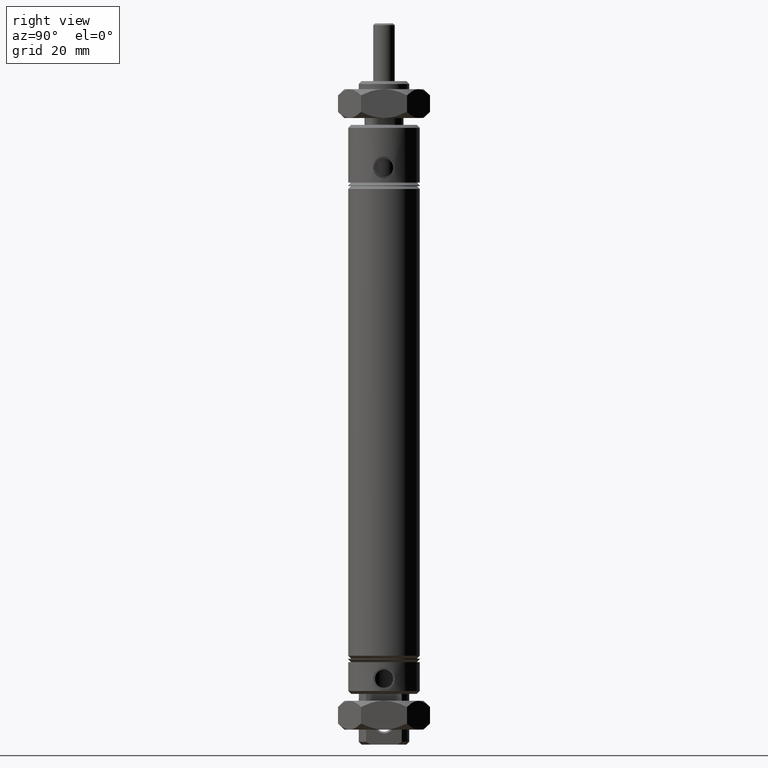
[diagram: clean part render]
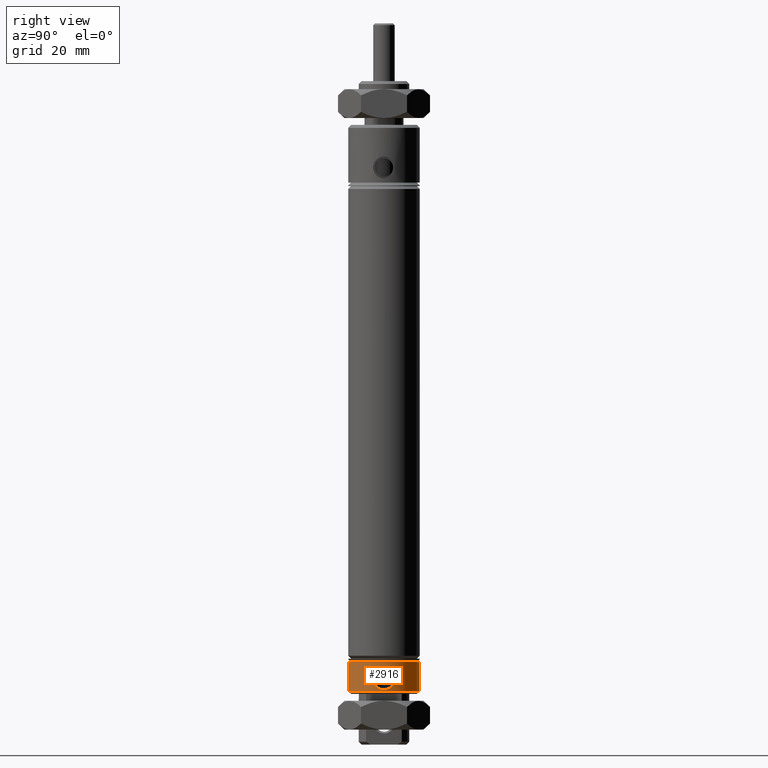
[diagram: same view with one face highlighted and labeled with its STEP entity id]
A machine part, right view. The second image highlights one B-rep face of the part: STEP entity #2916.
In plain terms, the highlighted cylindrical surface (edge-blend (fillet) strip) has radius 7.874 mm, axis along (0, 0, -1).
Its self-contained STEP definition (entity closure, byte-faithful):
#9 = CARTESIAN_POINT ( 'NONE',  ( 0.3071600273579448400, 0.04226327439893309800, -5.265308500240187200 ) ) ;
#19 = CARTESIAN_POINT ( 'NONE',  ( 0.2966211900249151000, 0.09012288623145736600, -5.149308322745176800 ) ) ;
#21 = CARTESIAN_POINT ( 'NONE',  ( 3.796405077356791500E-017, -0.3099999999999998300, -5.750000000000000900 ) ) ;
#33 = CARTESIAN_POINT ( 'NONE',  ( 0.3099999999999997800, 3.061439339677058500E-017, -5.085000000000000900 ) ) ;
#76 = EDGE_CURVE ( 'NONE', #3281, #1106, #1366, .T. ) ;
#79 = ORIENTED_EDGE ( 'NONE', *, *, #186, .F. ) ;
#121 = DIRECTION ( 'NONE',  ( 0.0000000000000000000, 1.000000000000000000, 0.0000000000000000000 ) ) ;
#186 = EDGE_CURVE ( 'NONE', #1241, #1634, #1073, .T. ) ;
#217 = CARTESIAN_POINT ( 'NONE',  ( 0.2952903614985457600, -0.09436757912648391400, -5.167417281589216300 ) ) ;
#233 = CARTESIAN_POINT ( 'NONE',  ( 0.3090713958136183700, -0.02474510461253738200, -5.271931962955304300 ) ) ;
#301 = CARTESIAN_POINT ( 'NONE',  ( 0.3045696741591820100, 0.05800539453309436900, -5.255490275191117900 ) ) ;
#318 = CARTESIAN_POINT ( 'NONE',  ( 0.2988781768133444400, 0.08236764183591938100, -5.132265215025756600 ) ) ;
#321 = ORIENTED_EDGE ( 'NONE', *, *, #1101, .F. ) ;
#337 = CARTESIAN_POINT ( 'NONE',  ( 0.0000000000000000000, 0.3099999999999996100, -5.285000000000000100 ) ) ;
#520 = CARTESIAN_POINT ( 'NONE',  ( 0.3092043599021611600, -0.02501415459339392500, -5.087516644343597100 ) ) ;
#539 = CARTESIAN_POINT ( 'NONE',  ( 0.2950846499500588400, -0.09500025980978002400, -5.186257139786151000 ) ) ;
#542 = EDGE_CURVE ( 'NONE', #1634, #1106, #3953, .T. ) ;
#547 = CARTESIAN_POINT ( 'NONE',  ( 0.3099999999999998300, -0.006316160591006102900, -5.275000000000001200 ) ) ;
#618 = CARTESIAN_POINT ( 'NONE',  ( 0.3098071931940732400, 0.01252278444046925000, -5.274376097982427700 ) ) ;
#639 = CARTESIAN_POINT ( 'NONE',  ( 0.3006957296384625800, 0.07590498057885899900, -5.238438493035586100 ) ) ;
#640 = CARTESIAN_POINT ( 'NONE',  ( 0.0000000000000000000, 0.3099999999999997800, -5.035000000000000100 ) ) ;
#647 = CARTESIAN_POINT ( 'NONE',  ( 0.3016667264376260400, 0.07153562143834839300, -5.117182368188346200 ) ) ;
#700 = B_SPLINE_CURVE_WITH_KNOTS ( 'NONE', 3,
 ( #1852, #3421, #618, #3744, #1863, #9, #2180, #301, #2495, #639, #2807, #947, #3121, #1255, #3430, #1570, #3760, #1877, #19, #2197, #318, #2506, #647, #2826, #960, #3135, #1270, #3451, #1579, #3770, #1896, #33 ),
 .UNSPECIFIED., .F., .F.,
 ( 4, 2, 2, 2, 2, 2, 2, 2, 2, 2, 2, 2, 2, 2, 2, 4 ),
 ( 4.716850976375545600E-019, 0.0004743798116385637400, 0.0009487596232771269300, 0.001423139434915689700, 0.001897519246554253000, 0.002846278869831379100, 0.003320658681469941900, 0.003795038493108504700, 0.004269418304747068400, 0.004743798116385631600, 0.005218177928024194900, 0.005692557739662758100, 0.006166937551301321400, 0.006641317362939884600, 0.007115697174578447900, 0.007590076986217011100 ),
 .UNSPECIFIED. ) ;
#736 = ORIENTED_EDGE ( 'NONE', *, *, #3214, .F. ) ;
#784 = ORIENTED_EDGE ( 'NONE', *, *, #1662, .T. ) ;
#805 = DIRECTION ( 'NONE',  ( -0.0000000000000000000, 3.444432108210942400E-017, 1.000000000000000000 ) ) ;
#833 = CARTESIAN_POINT ( 'NONE',  ( 0.3099999999999997800, 3.061439339677058500E-017, -5.085000000000000900 ) ) ;
#842 = CARTESIAN_POINT ( 'NONE',  ( 0.3063439665956264600, -0.04775511786948459500, -5.097642923438075800 ) ) ;
#855 = CARTESIAN_POINT ( 'NONE',  ( 0.2960532675835911800, -0.09194618415749232500, -5.204695873780811300 ) ) ;
#905 = CARTESIAN_POINT ( 'NONE',  ( 3.796405077356791500E-017, -0.3099999999999998900, -5.285000000000000100 ) ) ;
#947 = CARTESIAN_POINT ( 'NONE',  ( 0.2966318368570733400, 0.09008707917706428000, -5.210782010809048800 ) ) ;
#948 = AXIS2_PLACEMENT_3D ( 'NONE', #2667, #805, #2980 ) ;
#954 = EDGE_LOOP ( 'NONE', ( #321, #736 ) ) ;
#960 = CARTESIAN_POINT ( 'NONE',  ( 0.3045680662011595000, 0.05801231943077293100, -5.104516591644890700 ) ) ;
#1049 = CARTESIAN_POINT ( 'NONE',  ( 0.0000000000000000000, 0.3099999999999997200, -5.750000000000000900 ) ) ;
#1073 = CIRCLE ( 'NONE', #948, 0.3100000000000000000 ) ;
#1101 = EDGE_CURVE ( 'NONE', #3661, #3803, #700, .T. ) ;
#1106 = VERTEX_POINT ( 'NONE', #337 ) ;
#1149 = CARTESIAN_POINT ( 'NONE',  ( 0.3036081947033787400, -0.06278715487034046400, -5.108437437812131800 ) ) ;
#1166 = CARTESIAN_POINT ( 'NONE',  ( 0.2987338012222827100, -0.08296215412800919700, -5.227914825323405300 ) ) ;
#1241 = VERTEX_POINT ( 'NONE', #1338 ) ;
#1255 = CARTESIAN_POINT ( 'NONE',  ( 0.2952846441780617700, 0.09438555970158683800, -5.192473213312689000 ) ) ;
#1270 = CARTESIAN_POINT ( 'NONE',  ( 0.3071707467874796300, 0.04218257074387412500, -5.094653243079613400 ) ) ;
#1287 = DIRECTION ( 'NONE',  ( 0.0000000000000000000, 1.000000000000000000, 0.0000000000000000000 ) ) ;
#1338 = CARTESIAN_POINT ( 'NONE',  ( 3.796405077356794500E-017, -0.3100000000000001600, -5.035000000000000100 ) ) ;
#1358 = VECTOR ( 'NONE', #2918, 39.37007874015748100 ) ;
#1366 = CIRCLE ( 'NONE', #2903, 0.3099999999999997800 ) ;
#1395 = AXIS2_PLACEMENT_3D ( 'NONE', #2213, #3787, #1287 ) ;
#1474 = CARTESIAN_POINT ( 'NONE',  ( 0.3006821795394717400, -0.07551674278495181000, -5.122033211510684600 ) ) ;
#1484 = CARTESIAN_POINT ( 'NONE',  ( 0.3035953387018534600, -0.06284702048762712300, -5.251506409998029300 ) ) ;
#1570 = CARTESIAN_POINT ( 'NONE',  ( 0.2950838020911709700, 0.09500289339132633700, -5.173805233810239400 ) ) ;
#1579 = CARTESIAN_POINT ( 'NONE',  ( 0.3090672056773728900, 0.02480480092885255900, -5.088082027682321300 ) ) ;
#1634 = VERTEX_POINT ( 'NONE', #640 ) ;
#1662 = EDGE_CURVE ( 'NONE', #1241, #3281, #1999, .T. ) ;
#1770 = CARTESIAN_POINT ( 'NONE',  ( 0.2980415598226648400, -0.08530840327261260400, -5.137730149444819500 ) ) ;
#1785 = CARTESIAN_POINT ( 'NONE',  ( 0.3063514525116068400, -0.04770815512751484800, -5.262385036087851000 ) ) ;
#1852 = CARTESIAN_POINT ( 'NONE',  ( 0.3099999999999997800, -1.295070116013662700E-016, -5.275000000000001200 ) ) ;
#1863 = CARTESIAN_POINT ( 'NONE',  ( 0.3085230033963299300, 0.03077374115640032400, -5.270092737950339100 ) ) ;
#1877 = CARTESIAN_POINT ( 'NONE',  ( 0.2960581246640862100, 0.09193056863602636100, -5.155249704042175200 ) ) ;
#1896 = CARTESIAN_POINT ( 'NONE',  ( 0.3099999999999997800, 0.006224992158424550800, -5.085000000000000900 ) ) ;
#1943 = ORIENTED_EDGE ( 'NONE', *, *, #76, .T. ) ;
#1986 = DIRECTION ( 'NONE',  ( 0.0000000000000000000, -8.860047547019248200E-017, 1.000000000000000000 ) ) ;
#1999 = LINE ( 'NONE', #21, #2820 ) ;
#2070 = CARTESIAN_POINT ( 'NONE',  ( 0.3099999999999998300, -0.01244665311552943200, -5.085000000000000900 ) ) ;
#2086 = CARTESIAN_POINT ( 'NONE',  ( 0.2960593841541875300, -0.09192648496694672000, -5.155239423382725200 ) ) ;
#2101 = CARTESIAN_POINT ( 'NONE',  ( 0.3085190441702805900, -0.03081081444895015400, -5.270079082702555900 ) ) ;
#2180 = CARTESIAN_POINT ( 'NONE',  ( 0.3063518045625094300, 0.04770622657121602300, -5.262386427217754700 ) ) ;
#2197 = CARTESIAN_POINT ( 'NONE',  ( 0.2980377603179247800, 0.08532150033350458000, -5.137758370577803800 ) ) ;
#2213 = CARTESIAN_POINT ( 'NONE',  ( 0.0000000000000000000, -6.829619984160658000E-017, -5.750000000000000900 ) ) ;
#2245 = B_SPLINE_CURVE_WITH_KNOTS ( 'NONE', 3,
 ( #833, #2070, #520, #2705, #842, #3019, #1149, #3328, #1474, #3644, #1770, #3975, #2086, #217, #2406, #539, #2718, #855, #3031, #1166, #3341, #1484, #3666, #1785, #3986, #2101, #233, #2418, #547, #2735 ),
 .UNSPECIFIED., .F., .F.,
 ( 4, 2, 2, 2, 2, 2, 2, 2, 2, 2, 2, 2, 2, 2, 4 ),
 ( 0.007590076986217011100, 0.008538582753004942500, 0.009012835636398907800, 0.009487088519792873100, 0.009961341403186838400, 0.01043559428658080400, 0.01090984716997476900, 0.01138410005336873400, 0.01185835293676269900, 0.01233260582015666500, 0.01328111158694459500, 0.01375536447033859000, 0.01422961735373258500, 0.01470387023712657800, 0.01517812312052057300 ),
 .UNSPECIFIED. ) ;
#2406 = CARTESIAN_POINT ( 'NONE',  ( 0.2950848172898178900, -0.09499974002653471800, -5.173734973494076100 ) ) ;
#2418 = CARTESIAN_POINT ( 'NONE',  ( 0.3098071812677981000, -0.01252830185481918100, -5.274376096908779800 ) ) ;
#2495 = CARTESIAN_POINT ( 'NONE',  ( 0.3035947970777334000, 0.06284959158340562600, -5.251504088862359900 ) ) ;
#2506 = CARTESIAN_POINT ( 'NONE',  ( 0.3006853829732505400, 0.07550426122483908100, -5.122015996559059500 ) ) ;
#2509 = DIRECTION ( 'NONE',  ( -0.0000000000000000000, 8.860047547019231000E-017, -1.000000000000000000 ) ) ;
#2667 = CARTESIAN_POINT ( 'NONE',  ( 0.0000000000000000000, -1.734271566484209600E-016, -5.035000000000000100 ) ) ;
#2705 = CARTESIAN_POINT ( 'NONE',  ( 0.3071689787993806000, -0.04219572835581208300, -5.094659562577900800 ) ) ;
#2718 = CARTESIAN_POINT ( 'NONE',  ( 0.2952839768916623600, -0.09438755754382638400, -5.192448933441549600 ) ) ;
#2735 = CARTESIAN_POINT ( 'NONE',  ( 0.3099999999999997800, -1.295070116013662700E-016, -5.275000000000001200 ) ) ;
#2807 = CARTESIAN_POINT ( 'NONE',  ( 0.2987331847819599800, 0.08296383668473873700, -5.227904675126340300 ) ) ;
#2820 = VECTOR ( 'NONE', #2509, 39.37007874015748100 ) ;
#2826 = CARTESIAN_POINT ( 'NONE',  ( 0.3036119242078270700, 0.06276908835553396400, -5.108421780212061100 ) ) ;
#2903 = AXIS2_PLACEMENT_3D ( 'NONE', #3872, #1986, #121 ) ;
#2916 = ADVANCED_FACE ( 'NONE', ( #2957, #3791 ), #3695, .T. ) ;
#2918 = DIRECTION ( 'NONE',  ( -0.0000000000000000000, 8.860047547019231000E-017, -1.000000000000000000 ) ) ;
#2957 = FACE_BOUND ( 'NONE', #954, .T. ) ;
#2980 = DIRECTION ( 'NONE',  ( 0.0000000000000000000, -1.000000000000000000, 0.0000000000000000000 ) ) ;
#3019 = CARTESIAN_POINT ( 'NONE',  ( 0.3045650359258305100, -0.05802857954291371100, -5.104528659089780300 ) ) ;
#3031 = CARTESIAN_POINT ( 'NONE',  ( 0.2966284710947097400, -0.09009828460400011500, -5.210752015986755300 ) ) ;
#3121 = CARTESIAN_POINT ( 'NONE',  ( 0.2960578334868117500, 0.09193157345896792200, -5.204754812297493600 ) ) ;
#3135 = CARTESIAN_POINT ( 'NONE',  ( 0.3063452371728696000, 0.04774653722261071300, -5.097638344322784400 ) ) ;
#3214 = EDGE_CURVE ( 'NONE', #3803, #3661, #2245, .T. ) ;
#3266 = EDGE_LOOP ( 'NONE', ( #79, #784, #1943, #3739 ) ) ;
#3281 = VERTEX_POINT ( 'NONE', #905 ) ;
#3328 = CARTESIAN_POINT ( 'NONE',  ( 0.3016622833852123400, -0.07155438135136647800, -5.117203522128803300 ) ) ;
#3341 = CARTESIAN_POINT ( 'NONE',  ( 0.3006959399673092000, -0.07590429730810939500, -5.238439680612365200 ) ) ;
#3421 = CARTESIAN_POINT ( 'NONE',  ( 0.3099999999999998900, 0.006317851037610312600, -5.275000000000002100 ) ) ;
#3430 = CARTESIAN_POINT ( 'NONE',  ( 0.2950856717207772100, 0.09499708603111366200, -5.186283193970167500 ) ) ;
#3451 = CARTESIAN_POINT ( 'NONE',  ( 0.3085267632160255100, 0.03073228491313883400, -5.089894701291174600 ) ) ;
#3515 = CARTESIAN_POINT ( 'NONE',  ( 0.3099999999999997800, 3.061439339677058500E-017, -5.085000000000000900 ) ) ;
#3644 = CARTESIAN_POINT ( 'NONE',  ( 0.2988777954325812500, -0.08236877400335491900, -5.132268332547478300 ) ) ;
#3661 = VERTEX_POINT ( 'NONE', #3773 ) ;
#3666 = CARTESIAN_POINT ( 'NONE',  ( 0.3045703919344478500, -0.05800135238543367000, -5.255493081526246600 ) ) ;
#3695 = CYLINDRICAL_SURFACE ( 'NONE', #1395, 0.3099999999999997800 ) ;
#3739 = ORIENTED_EDGE ( 'NONE', *, *, #542, .F. ) ;
#3744 = CARTESIAN_POINT ( 'NONE',  ( 0.3090733317147565400, 0.02471826668017886700, -5.271938432077442700 ) ) ;
#3760 = CARTESIAN_POINT ( 'NONE',  ( 0.2952878690433259300, 0.09437540476845848700, -5.167466462010560600 ) ) ;
#3770 = CARTESIAN_POINT ( 'NONE',  ( 0.3098077786177188000, 0.01252821145631114100, -5.085621847327787200 ) ) ;
#3773 = CARTESIAN_POINT ( 'NONE',  ( 0.3099999999999997800, -1.295070116013662700E-016, -5.275000000000001200 ) ) ;
#3787 = DIRECTION ( 'NONE',  ( -0.0000000000000000000, 8.860047547019231000E-017, -1.000000000000000000 ) ) ;
#3791 = FACE_OUTER_BOUND ( 'NONE', #3266, .T. ) ;
#3803 = VERTEX_POINT ( 'NONE', #3515 ) ;
#3872 = CARTESIAN_POINT ( 'NONE',  ( 0.0000000000000000000, -1.094954209352460500E-016, -5.285000000000000100 ) ) ;
#3953 = LINE ( 'NONE', #1049, #1358 ) ;
#3975 = CARTESIAN_POINT ( 'NONE',  ( 0.2966217142527802800, -0.09012132757672725000, -5.149301298876203200 ) ) ;
#3986 = CARTESIAN_POINT ( 'NONE',  ( 0.3071584604516701100, -0.04227276990819125300, -5.265302757000171100 ) ) ;